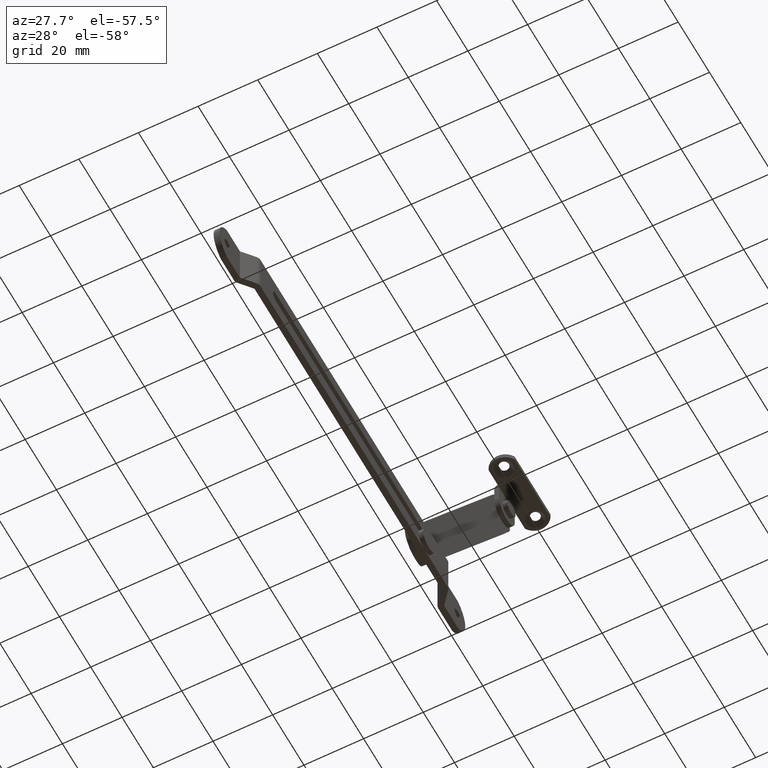
[diagram: clean part render]
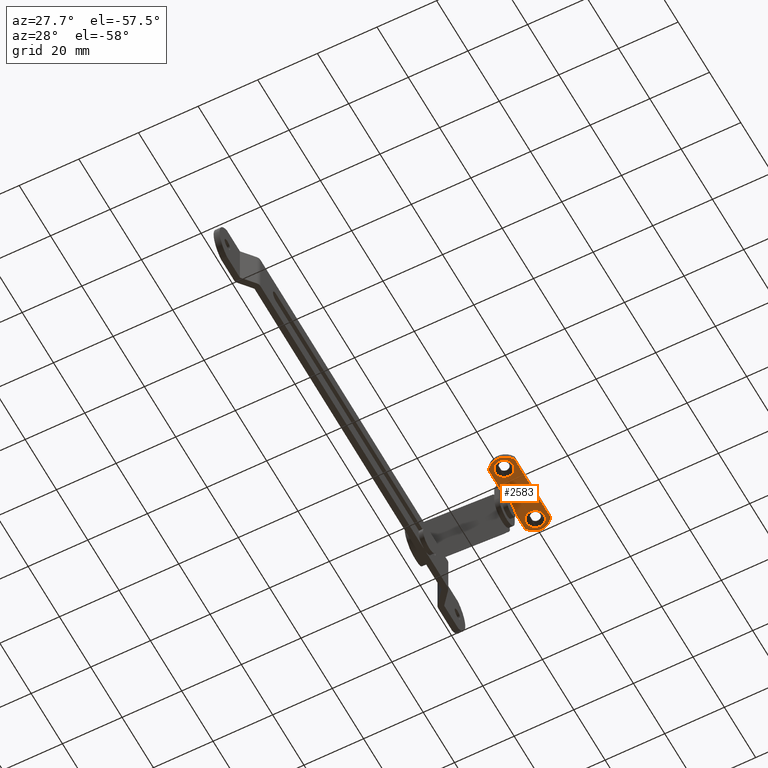
[diagram: same view with one face highlighted and labeled with its STEP entity id]
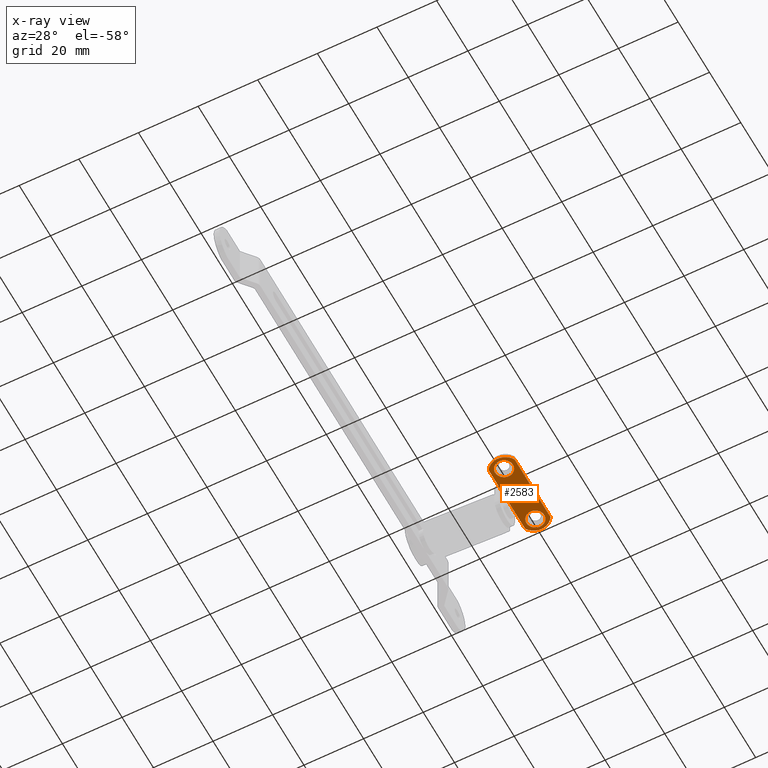
[diagram: x-ray of the same camera — body ghosted, the highlighted face saturated]
A machine part, auxiliary view. The second image highlights one B-rep face of the part: STEP entity #2583.
The next image is the same camera in x-ray: the body ghosted, the highlighted face saturated — about 0% of this face is hidden behind the body in this view.
In plain terms, the highlighted face is a freeform B-spline surface patch.
Its self-contained STEP definition (entity closure, byte-faithful):
#1772=CARTESIAN_POINT('',(9.645903123595947,17.479028614461690,94.548699919537228));
#1773=VERTEX_POINT('',#1772);
#1779=CARTESIAN_POINT('',(13.000005975013661,14.500000000000000,94.548699999999997));
#1780=VERTEX_POINT('',#1779);
#1781=CARTESIAN_POINT('',(9.645903123595947,17.479028614461690,94.548699919537228));
#1782=CARTESIAN_POINT('',(9.822333474884687,17.499999975013740,94.548699999999997));
#1783=CARTESIAN_POINT('',(10.000005999999919,17.499999975013750,94.548699999999997));
#1784=CARTESIAN_POINT('',(13.000005975013666,17.499999975013743,94.548699999999997));
#1785=CARTESIAN_POINT('',(13.000005975013661,14.500000000000000,94.548699999999997));
#1793=(BOUNDED_CURVE()B_SPLINE_CURVE(2,(#1781,#1782,#1783,#1784,#1785),.UNSPECIFIED.,.F.,.U.)B_SPLINE_CURVE_WITH_KNOTS((3,2,3),(0.229562454693938,0.250000000000000,0.500000000000000),.UNSPECIFIED.)CURVE()GEOMETRIC_REPRESENTATION_ITEM()RATIONAL_B_SPLINE_CURVE((0.956026717296575,0.976055926282647,1.0,0.707106781186547,1.0))REPRESENTATION_ITEM(''));
#1794=EDGE_CURVE('',#1773,#1780,#1793,.T.);
#1796=CARTESIAN_POINT('',(10.183151617501389,11.505595629645031,94.548699999945242));
#1797=VERTEX_POINT('',#1796);
#1798=CARTESIAN_POINT('',(13.000005975013661,14.500000000000000,94.548699999999997));
#1799=CARTESIAN_POINT('',(13.000005975013666,11.677881823578772,94.548700000000011));
#1800=CARTESIAN_POINT('',(10.183151617501389,11.505595629645027,94.548699999945242));
#1808=(BOUNDED_CURVE()B_SPLINE_CURVE(2,(#1798,#1799,#1800),.UNSPECIFIED.,.F.,.U.)B_SPLINE_CURVE_WITH_KNOTS((3,3),(0.500000000000000,0.739332962193688),.UNSPECIFIED.)CURVE()GEOMETRIC_REPRESENTATION_ITEM()RATIONAL_B_SPLINE_CURVE((1.0,0.719603993339730,0.976072041569728))REPRESENTATION_ITEM(''));
#1809=EDGE_CURVE('',#1780,#1797,#1808,.T.);
#1842=CARTESIAN_POINT('',(7.000006024986174,14.500000000000000,94.548699999999997));
#1843=VERTEX_POINT('',#1842);
#1844=CARTESIAN_POINT('',(10.183151617501389,11.505595629645036,94.548699999945242));
#1845=CARTESIAN_POINT('',(10.091664289552392,11.500000024986262,94.548699999999982));
#1846=CARTESIAN_POINT('',(10.000005999999919,11.500000024986260,94.548699999999997));
#1847=CARTESIAN_POINT('',(7.000006024986174,11.500000024986258,94.548699999999997));
#1848=CARTESIAN_POINT('',(7.000006024986174,14.500000000000000,94.548699999999997));
#1856=(BOUNDED_CURVE()B_SPLINE_CURVE(2,(#1844,#1845,#1846,#1847,#1848),.UNSPECIFIED.,.F.,.U.)B_SPLINE_CURVE_WITH_KNOTS((3,2,3),(0.739332962193688,0.750000000000000,1.0),.UNSPECIFIED.)CURVE()GEOMETRIC_REPRESENTATION_ITEM()RATIONAL_B_SPLINE_CURVE((0.976072041569728,0.987502787846818,1.0,0.707106781186547,1.0))REPRESENTATION_ITEM(''));
#1857=EDGE_CURVE('',#1797,#1843,#1856,.T.);
#1859=CARTESIAN_POINT('',(7.000006024986174,14.500000000000000,94.548699999999997));
#1860=CARTESIAN_POINT('',(7.000006024986174,17.164523256827906,94.548700000000011));
#1861=CARTESIAN_POINT('',(9.645903123595947,17.479028614461683,94.548699919537228));
#1869=(BOUNDED_CURVE()B_SPLINE_CURVE(2,(#1859,#1860,#1861),.UNSPECIFIED.,.F.,.U.)B_SPLINE_CURVE_WITH_KNOTS((3,3),(0.0,0.229562454693938),.UNSPECIFIED.)CURVE()GEOMETRIC_REPRESENTATION_ITEM()RATIONAL_B_SPLINE_CURVE((1.0,0.731050854903900,0.956026717296575))REPRESENTATION_ITEM(''));
#1870=EDGE_CURVE('',#1843,#1773,#1869,.T.);
#2100=CARTESIAN_POINT('',(9.645903123595947,37.479028614461690,94.548699919537228));
#2101=VERTEX_POINT('',#2100);
#2107=CARTESIAN_POINT('',(13.000005975013661,34.500000000000000,94.548699999999997));
#2108=VERTEX_POINT('',#2107);
#2109=CARTESIAN_POINT('',(9.645903123595947,37.479028614461683,94.548699919537228));
#2110=CARTESIAN_POINT('',(9.822333474884687,37.499999975013743,94.548700000000011));
#2111=CARTESIAN_POINT('',(10.000005999999919,37.499999975013750,94.548699999999997));
#2112=CARTESIAN_POINT('',(13.000005975013666,37.499999975013743,94.548699999999997));
#2113=CARTESIAN_POINT('',(13.000005975013661,34.500000000000000,94.548699999999997));
#2121=(BOUNDED_CURVE()B_SPLINE_CURVE(2,(#2109,#2110,#2111,#2112,#2113),.UNSPECIFIED.,.F.,.U.)B_SPLINE_CURVE_WITH_KNOTS((3,2,3),(0.229562454693938,0.250000000000000,0.500000000000000),.UNSPECIFIED.)CURVE()GEOMETRIC_REPRESENTATION_ITEM()RATIONAL_B_SPLINE_CURVE((0.956026717296575,0.976055926282647,1.0,0.707106781186547,1.0))REPRESENTATION_ITEM(''));
#2122=EDGE_CURVE('',#2101,#2108,#2121,.T.);
#2124=CARTESIAN_POINT('',(10.183151617501389,31.505595629645029,94.548699999945256));
#2125=VERTEX_POINT('',#2124);
#2126=CARTESIAN_POINT('',(13.000005975013661,34.500000000000000,94.548699999999997));
#2127=CARTESIAN_POINT('',(13.000005975013666,31.677881823578772,94.548700000000011));
#2128=CARTESIAN_POINT('',(10.183151617501389,31.505595629645036,94.548699999945256));
#2136=(BOUNDED_CURVE()B_SPLINE_CURVE(2,(#2126,#2127,#2128),.UNSPECIFIED.,.F.,.U.)B_SPLINE_CURVE_WITH_KNOTS((3,3),(0.500000000000000,0.739332962193688),.UNSPECIFIED.)CURVE()GEOMETRIC_REPRESENTATION_ITEM()RATIONAL_B_SPLINE_CURVE((1.0,0.719603993339730,0.976072041569728))REPRESENTATION_ITEM(''));
#2137=EDGE_CURVE('',#2108,#2125,#2136,.T.);
#2170=CARTESIAN_POINT('',(7.000006024986174,34.500000000000000,94.548699999999997));
#2171=VERTEX_POINT('',#2170);
#2172=CARTESIAN_POINT('',(10.183151617501389,31.505595629645025,94.548699999945256));
#2173=CARTESIAN_POINT('',(10.091664289552392,31.500000024986250,94.548699999999982));
#2174=CARTESIAN_POINT('',(10.000005999999919,31.500000024986260,94.548699999999997));
#2175=CARTESIAN_POINT('',(7.000006024986174,31.500000024986260,94.548699999999997));
#2176=CARTESIAN_POINT('',(7.000006024986174,34.500000000000000,94.548699999999997));
#2184=(BOUNDED_CURVE()B_SPLINE_CURVE(2,(#2172,#2173,#2174,#2175,#2176),.UNSPECIFIED.,.F.,.U.)B_SPLINE_CURVE_WITH_KNOTS((3,2,3),(0.739332962193688,0.750000000000000,1.0),.UNSPECIFIED.)CURVE()GEOMETRIC_REPRESENTATION_ITEM()RATIONAL_B_SPLINE_CURVE((0.976072041569728,0.987502787846818,1.0,0.707106781186547,1.0))REPRESENTATION_ITEM(''));
#2185=EDGE_CURVE('',#2125,#2171,#2184,.T.);
#2187=CARTESIAN_POINT('',(7.000006024986174,34.500000000000000,94.548699999999997));
#2188=CARTESIAN_POINT('',(7.000006024986174,37.164523256827913,94.548699999999997));
#2189=CARTESIAN_POINT('',(9.645903123595945,37.479028614461697,94.548699919537228));
#2197=(BOUNDED_CURVE()B_SPLINE_CURVE(2,(#2187,#2188,#2189),.UNSPECIFIED.,.F.,.U.)B_SPLINE_CURVE_WITH_KNOTS((3,3),(0.0,0.229562454693938),.UNSPECIFIED.)CURVE()GEOMETRIC_REPRESENTATION_ITEM()RATIONAL_B_SPLINE_CURVE((1.0,0.731050854903900,0.956026717296575))REPRESENTATION_ITEM(''));
#2198=EDGE_CURVE('',#2171,#2101,#2197,.T.);
#2276=CARTESIAN_POINT('',(5.700005999999920,29.500000000000000,94.548699999999997));
#2277=VERTEX_POINT('',#2276);
#2283=CARTESIAN_POINT('',(5.700005999999920,19.500000000000000,94.548699999999997));
#2284=VERTEX_POINT('',#2283);
#2285=CARTESIAN_POINT('',(5.700005999999920,29.500000000000000,94.548699999999997));
#2286=CARTESIAN_POINT('',(5.700005999999920,19.500000000000000,94.548699999999997));
#2287=QUASI_UNIFORM_CURVE('',1,(#2285,#2286),.UNSPECIFIED.,.F.,.U.);
#2288=EDGE_CURVE('',#2277,#2284,#2287,.T.);
#2510=CARTESIAN_POINT('',(5.270436016668384,9.102457282506011,94.548699999999997));
#2511=CARTESIAN_POINT('',(14.729576214001510,9.102457282506011,94.548699999999997));
#2512=CARTESIAN_POINT('',(5.270436016668384,39.897543471912762,94.548699999999997));
#2513=CARTESIAN_POINT('',(14.729576214001510,39.897543471912762,94.548699999999997));
#2514=B_SPLINE_SURFACE_WITH_KNOTS('',1,1,((#2510,#2512),(#2511,#2513)),.UNSPECIFIED.,.F.,.F.,.U.,(2,2),(2,2),(0.0,9.459140197333124),(0.0,30.795086189406749),.UNSPECIFIED.);
#2515=CARTESIAN_POINT('',(5.700006017604220,36.133913466618957,94.548699999999997));
#2516=VERTEX_POINT('',#2515);
#2517=CARTESIAN_POINT('',(5.700006017604220,36.133913466618957,94.548699999999997));
#2518=CARTESIAN_POINT('',(5.700005999999920,29.500000000000000,94.548699999999997));
#2519=QUASI_UNIFORM_CURVE('',1,(#2517,#2518),.UNSPECIFIED.,.F.,.U.);
#2520=EDGE_CURVE('',#2516,#2277,#2519,.T.);
#2521=ORIENTED_EDGE('',*,*,#2520,.F.);
#2522=CARTESIAN_POINT('',(14.300006000000000,35.965259000000003,94.548699999999997));
#2523=VERTEX_POINT('',#2522);
#2524=CARTESIAN_POINT('',(5.700006017604288,36.133913466618907,94.548699999999997));
#2525=CARTESIAN_POINT('',(7.200388893162717,38.554884115626479,94.548699999999997));
#2526=CARTESIAN_POINT('',(10.048042130000541,38.499038799330783,94.548699999999997));
#2527=CARTESIAN_POINT('',(12.895695366838366,38.443193483035081,94.548699999999997));
#2528=CARTESIAN_POINT('',(14.300006000000000,35.965259000000003,94.548699999999997));
#2536=(BOUNDED_CURVE()B_SPLINE_CURVE(2,(#2524,#2525,#2526,#2527,#2528),.UNSPECIFIED.,.F.,.U.)B_SPLINE_CURVE_WITH_KNOTS((3,2,3),(0.0,0.500000000000000,1.0),.UNSPECIFIED.)CURVE()GEOMETRIC_REPRESENTATION_ITEM()RATIONAL_B_SPLINE_CURVE((1.0,0.868911756888251,1.0,0.868911756888251,1.0))REPRESENTATION_ITEM(''));
#2537=EDGE_CURVE('',#2516,#2523,#2536,.T.);
#2538=ORIENTED_EDGE('',*,*,#2537,.T.);
#2539=CARTESIAN_POINT('',(14.300005978492621,13.034741354925719,94.548699999999997));
#2540=VERTEX_POINT('',#2539);
#2541=CARTESIAN_POINT('',(14.300005978492621,13.034741354925719,94.548699999999997));
#2542=CARTESIAN_POINT('',(14.300006000000000,35.965259000000003,94.548699999999997));
#2543=QUASI_UNIFORM_CURVE('',1,(#2541,#2542),.UNSPECIFIED.,.F.,.U.);
#2544=EDGE_CURVE('',#2540,#2523,#2543,.T.);
#2545=ORIENTED_EDGE('',*,*,#2544,.F.);
#2546=CARTESIAN_POINT('',(5.700006017604240,12.866086533381020,94.548699999999997));
#2547=VERTEX_POINT('',#2546);
#2548=CARTESIAN_POINT('',(14.300005978492679,13.034741354925689,94.548699999999997));
#2549=CARTESIAN_POINT('',(12.895695612950561,10.556806606735737,94.548699999999997));
#2550=CARTESIAN_POINT('',(10.048042279062461,10.500961203592480,94.548699999999997));
#2551=CARTESIAN_POINT('',(7.200388945174358,10.445115800449212,94.548699999999997));
#2552=CARTESIAN_POINT('',(5.700006017604307,12.866086533381059,94.548699999999997));
#2560=(BOUNDED_CURVE()B_SPLINE_CURVE(2,(#2548,#2549,#2550,#2551,#2552),.UNSPECIFIED.,.F.,.U.)B_SPLINE_CURVE_WITH_KNOTS((3,2,3),(0.0,0.500000000000000,1.0),.UNSPECIFIED.)CURVE()GEOMETRIC_REPRESENTATION_ITEM()RATIONAL_B_SPLINE_CURVE((1.0,0.868911749508760,1.0,0.868911749508760,1.0))REPRESENTATION_ITEM(''));
#2561=EDGE_CURVE('',#2540,#2547,#2560,.T.);
#2562=ORIENTED_EDGE('',*,*,#2561,.T.);
#2563=CARTESIAN_POINT('',(5.700005999999920,19.500000000000000,94.548699999999997));
#2564=CARTESIAN_POINT('',(5.700006017604240,12.866086533381020,94.548699999999997));
#2565=QUASI_UNIFORM_CURVE('',1,(#2563,#2564),.UNSPECIFIED.,.F.,.U.);
#2566=EDGE_CURVE('',#2284,#2547,#2565,.T.);
#2567=ORIENTED_EDGE('',*,*,#2566,.F.);
#2568=ORIENTED_EDGE('',*,*,#2288,.F.);
#2569=EDGE_LOOP('',(#2521,#2538,#2545,#2562,#2567,#2568));
#2570=FACE_OUTER_BOUND('',#2569,.T.);
#2571=ORIENTED_EDGE('',*,*,#2137,.F.);
#2572=ORIENTED_EDGE('',*,*,#2122,.F.);
#2573=ORIENTED_EDGE('',*,*,#2198,.F.);
#2574=ORIENTED_EDGE('',*,*,#2185,.F.);
#2575=EDGE_LOOP('',(#2571,#2572,#2573,#2574));
#2576=FACE_BOUND('',#2575,.T.);
#2577=ORIENTED_EDGE('',*,*,#1809,.F.);
#2578=ORIENTED_EDGE('',*,*,#1794,.F.);
#2579=ORIENTED_EDGE('',*,*,#1870,.F.);
#2580=ORIENTED_EDGE('',*,*,#1857,.F.);
#2581=EDGE_LOOP('',(#2577,#2578,#2579,#2580));
#2582=FACE_BOUND('',#2581,.T.);
#2583=ADVANCED_FACE('',(#2570,#2576,#2582),#2514,.F.);